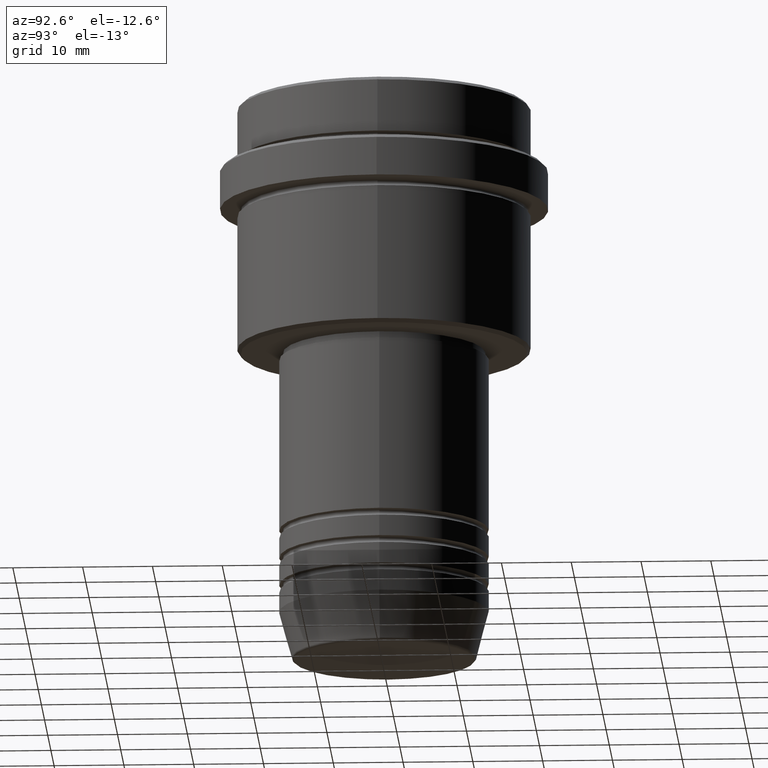
[diagram: clean part render]
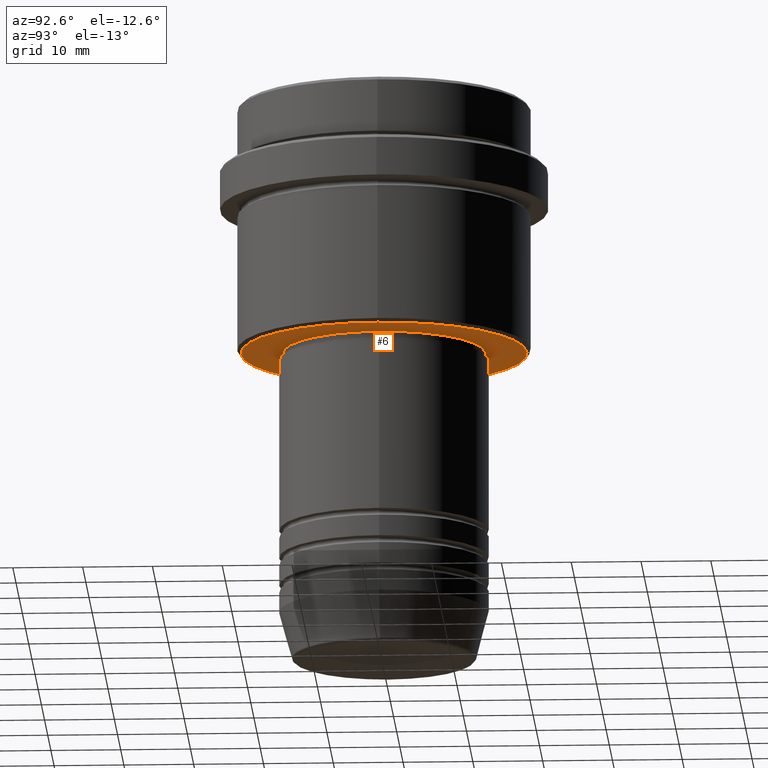
[diagram: same view with one face highlighted and labeled with its STEP entity id]
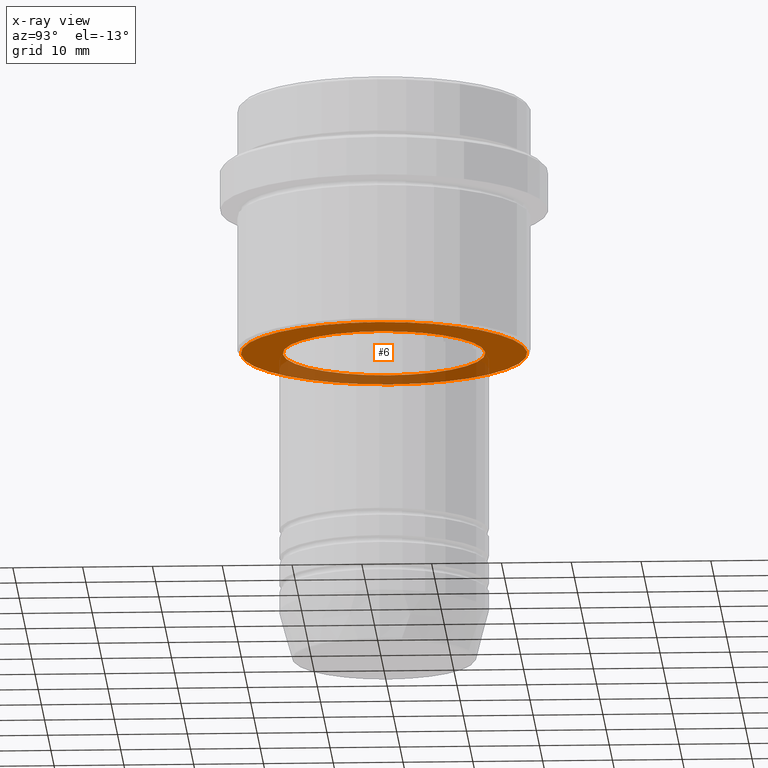
[diagram: x-ray of the same camera — body ghosted, the highlighted face saturated]
A machine part, auxiliary view. The second image highlights one B-rep face of the part: STEP entity #6.
The next image is the same camera in x-ray: the body ghosted, the highlighted face saturated — about 32% of this face is hidden behind the body in this view.
In plain terms, the highlighted planar face has unit normal (0, 0, -1).
Its self-contained STEP definition (entity closure, byte-faithful):
#2 = AXIS2_PLACEMENT_3D ( 'NONE', #592, #1034, #47 ) ;
#6 = ADVANCED_FACE ( 'NONE', ( #266, #819 ), #1254, .T. ) ;
#47 = DIRECTION ( 'NONE',  ( -1.000000000000000000, 0.000000000000000000, -0.000000000000000000 ) ) ;
#71 = AXIS2_PLACEMENT_3D ( 'NONE', #169, #1156, #1348 ) ;
#137 = CIRCLE ( 'NONE', #71, 14.49999999999999467 ) ;
#169 = CARTESIAN_POINT ( 'NONE',  ( 0.000000000000000000, 0.000000000000000000, -36.00000000000000000 ) ) ;
#237 = DIRECTION ( 'NONE',  ( -1.000000000000000000, 0.000000000000000000, 0.000000000000000000 ) ) ;
#266 = FACE_OUTER_BOUND ( 'NONE', #381, .T. ) ;
#339 = AXIS2_PLACEMENT_3D ( 'NONE', #1226, #347, #237 ) ;
#347 = DIRECTION ( 'NONE',  ( 0.000000000000000000, 0.000000000000000000, -1.000000000000000000 ) ) ;
#381 = EDGE_LOOP ( 'NONE', ( #490, #389 ) ) ;
#389 = ORIENTED_EDGE ( 'NONE', *, *, #1223, .T. ) ;
#424 = EDGE_CURVE ( 'NONE', #1381, #589, #1055, .T. ) ;
#429 = CIRCLE ( 'NONE', #448, 20.49999999999996803 ) ;
#448 = AXIS2_PLACEMENT_3D ( 'NONE', #892, #876, #775 ) ;
#490 = ORIENTED_EDGE ( 'NONE', *, *, #1098, .T. ) ;
#531 = AXIS2_PLACEMENT_3D ( 'NONE', #696, #807, #1344 ) ;
#554 = EDGE_LOOP ( 'NONE', ( #758, #584 ) ) ;
#581 = CARTESIAN_POINT ( 'NONE',  ( 14.49999999999999467, 0.000000000000000000, -36.00000000000000000 ) ) ;
#584 = ORIENTED_EDGE ( 'NONE', *, *, #808, .T. ) ;
#589 = VERTEX_POINT ( 'NONE', #626 ) ;
#592 = CARTESIAN_POINT ( 'NONE',  ( 0.000000000000000000, 21.00000000000000000, -36.00000000000000000 ) ) ;
#626 = CARTESIAN_POINT ( 'NONE',  ( -14.49999999999999467, 1.775737858763661620E-15, -36.00000000000000000 ) ) ;
#696 = CARTESIAN_POINT ( 'NONE',  ( 0.000000000000000000, 0.000000000000000000, -36.00000000000000000 ) ) ;
#758 = ORIENTED_EDGE ( 'NONE', *, *, #424, .T. ) ;
#775 = DIRECTION ( 'NONE',  ( -1.000000000000000000, 0.000000000000000000, 0.000000000000000000 ) ) ;
#807 = DIRECTION ( 'NONE',  ( -0.000000000000000000, -0.000000000000000000, 1.000000000000000000 ) ) ;
#808 = EDGE_CURVE ( 'NONE', #589, #1381, #137, .T. ) ;
#819 = FACE_BOUND ( 'NONE', #554, .T. ) ;
#849 = VERTEX_POINT ( 'NONE', #1355 ) ;
#876 = DIRECTION ( 'NONE',  ( 0.000000000000000000, 0.000000000000000000, -1.000000000000000000 ) ) ;
#892 = CARTESIAN_POINT ( 'NONE',  ( 0.000000000000000000, 0.000000000000000000, -36.00000000000000000 ) ) ;
#976 = VERTEX_POINT ( 'NONE', #1186 ) ;
#1034 = DIRECTION ( 'NONE',  ( 0.000000000000000000, 0.000000000000000000, -1.000000000000000000 ) ) ;
#1055 = CIRCLE ( 'NONE', #531, 14.49999999999999467 ) ;
#1098 = EDGE_CURVE ( 'NONE', #976, #849, #1386, .T. ) ;
#1156 = DIRECTION ( 'NONE',  ( -0.000000000000000000, -0.000000000000000000, 1.000000000000000000 ) ) ;
#1186 = CARTESIAN_POINT ( 'NONE',  ( 20.49999999999996803, 0.000000000000000000, -36.00000000000000000 ) ) ;
#1223 = EDGE_CURVE ( 'NONE', #849, #976, #429, .T. ) ;
#1226 = CARTESIAN_POINT ( 'NONE',  ( 0.000000000000000000, 0.000000000000000000, -36.00000000000000000 ) ) ;
#1254 = PLANE ( 'NONE',  #2 ) ;
#1344 = DIRECTION ( 'NONE',  ( 1.000000000000000000, 0.000000000000000000, 0.000000000000000000 ) ) ;
#1348 = DIRECTION ( 'NONE',  ( 1.000000000000000000, 0.000000000000000000, 0.000000000000000000 ) ) ;
#1355 = CARTESIAN_POINT ( 'NONE',  ( -20.49999999999996803, 2.541142108230756296E-15, -36.00000000000000000 ) ) ;
#1381 = VERTEX_POINT ( 'NONE', #581 ) ;
#1386 = CIRCLE ( 'NONE', #339, 20.49999999999996803 ) ;